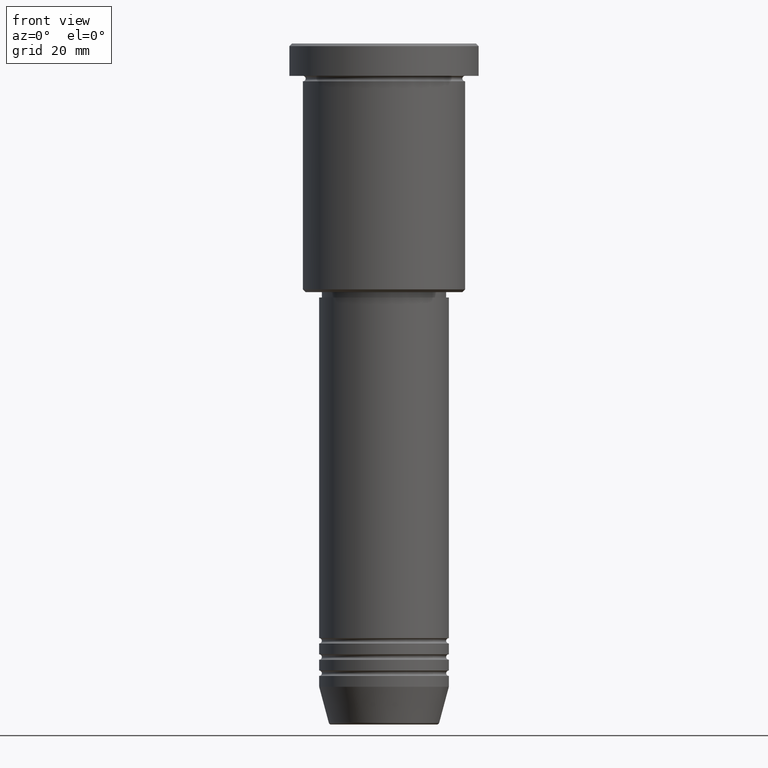
[diagram: clean part render]
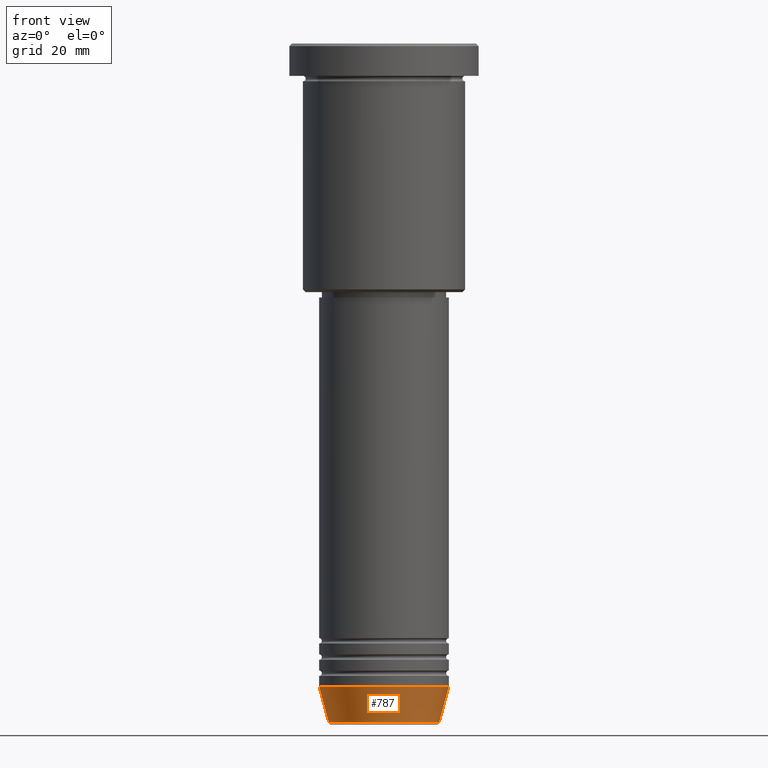
[diagram: same view with one face highlighted and labeled with its STEP entity id]
A machine part, front view. The second image highlights one B-rep face of the part: STEP entity #787.
In plain terms, the highlighted conical surface has half-angle 15 deg.
Its self-contained STEP definition (entity closure, byte-faithful):
#19 = AXIS2_PLACEMENT_3D ( 'NONE', #975, #789, #343 ) ;
#33 = VECTOR ( 'NONE', #1089, 1000.000000000000000 ) ;
#93 = EDGE_CURVE ( 'NONE', #263, #441, #1147, .T. ) ;
#105 = EDGE_CURVE ( 'NONE', #252, #151, #540, .T. ) ;
#136 = CARTESIAN_POINT ( 'NONE',  ( 12.00000000000000000, 0.000000000000000000, -119.0000000000000000 ) ) ;
#147 = CARTESIAN_POINT ( 'NONE',  ( -12.00000000000000000, 1.469576158976823947E-15, -119.0000000000000000 ) ) ;
#151 = VERTEX_POINT ( 'NONE', #136 ) ;
#173 = CARTESIAN_POINT ( 'NONE',  ( 0.000000000000000000, 0.000000000000000000, -119.0000000000000000 ) ) ;
#219 = CIRCLE ( 'NONE', #19, 10.22365507213718949 ) ;
#246 = CARTESIAN_POINT ( 'NONE',  ( -12.00000000000000000, 1.469576158976823947E-15, -119.0000000000000000 ) ) ;
#252 = VERTEX_POINT ( 'NONE', #769 ) ;
#263 = VERTEX_POINT ( 'NONE', #1090 ) ;
#267 = CARTESIAN_POINT ( 'NONE',  ( 12.00000000000000000, 0.000000000000000000, -119.0000000000000000 ) ) ;
#343 = DIRECTION ( 'NONE',  ( 1.000000000000000000, 0.000000000000000000, 0.000000000000000000 ) ) ;
#353 = EDGE_CURVE ( 'NONE', #263, #252, #219, .T. ) ;
#358 = AXIS2_PLACEMENT_3D ( 'NONE', #173, #530, #786 ) ;
#395 = ORIENTED_EDGE ( 'NONE', *, *, #93, .F. ) ;
#432 = EDGE_CURVE ( 'NONE', #441, #151, #835, .T. ) ;
#441 = VERTEX_POINT ( 'NONE', #147 ) ;
#445 = DIRECTION ( 'NONE',  ( -0.000000000000000000, -0.000000000000000000, 1.000000000000000000 ) ) ;
#525 = ORIENTED_EDGE ( 'NONE', *, *, #432, .F. ) ;
#529 = EDGE_LOOP ( 'NONE', ( #395, #800, #979, #525 ) ) ;
#530 = DIRECTION ( 'NONE',  ( -0.000000000000000000, -0.000000000000000000, 1.000000000000000000 ) ) ;
#540 = LINE ( 'NONE', #267, #915 ) ;
#615 = DIRECTION ( 'NONE',  ( 1.000000000000000000, 0.000000000000000000, 0.000000000000000000 ) ) ;
#643 = CONICAL_SURFACE ( 'NONE', #358, 12.00000000000000000, 0.2617993877991500740 ) ;
#650 = DIRECTION ( 'NONE',  ( 0.2588190451025213501, 0.000000000000000000, 0.9659258262890680902 ) ) ;
#769 = CARTESIAN_POINT ( 'NONE',  ( 10.22365507213718949, 0.000000000000000000, -125.6294095225512564 ) ) ;
#786 = DIRECTION ( 'NONE',  ( 1.000000000000000000, 0.000000000000000000, 0.000000000000000000 ) ) ;
#787 = ADVANCED_FACE ( 'NONE', ( #1152 ), #643, .T. ) ;
#789 = DIRECTION ( 'NONE',  ( -0.000000000000000000, -0.000000000000000000, 1.000000000000000000 ) ) ;
#798 = CARTESIAN_POINT ( 'NONE',  ( 0.000000000000000000, 0.000000000000000000, -119.0000000000000000 ) ) ;
#800 = ORIENTED_EDGE ( 'NONE', *, *, #353, .T. ) ;
#835 = CIRCLE ( 'NONE', #1021, 12.00000000000000000 ) ;
#915 = VECTOR ( 'NONE', #650, 1000.000000000000000 ) ;
#975 = CARTESIAN_POINT ( 'NONE',  ( 0.000000000000000000, 0.000000000000000000, -125.6294095225512564 ) ) ;
#979 = ORIENTED_EDGE ( 'NONE', *, *, #105, .T. ) ;
#1021 = AXIS2_PLACEMENT_3D ( 'NONE', #798, #445, #615 ) ;
#1089 = DIRECTION ( 'NONE',  ( -0.2588190451025213501, 3.169619151431772337E-17, 0.9659258262890680902 ) ) ;
#1090 = CARTESIAN_POINT ( 'NONE',  ( -10.22365507213718949, 1.360806402472382744E-15, -125.6294095225512564 ) ) ;
#1147 = LINE ( 'NONE', #246, #33 ) ;
#1152 = FACE_OUTER_BOUND ( 'NONE', #529, .T. ) ;